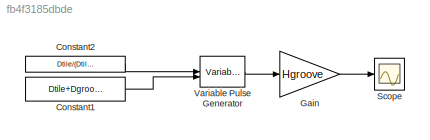
MODEL slx_fb4f3185dbde
KIND model
CONFIG AbsTol = auto
CONFIG EnableMultiTasking = off
CONFIG FixedStep = auto
CONFIG MaxStep = auto
CONFIG MinStep = auto
CONFIG RelTol = 1e-3
CONFIG SampleTimeConstraint = Unconstrained
CONFIG SolverName = VariableStepAuto
CONFIG StartTime = 0.0
CONFIG StopTime = 10
WORKSPACE source: mxarray member
WORKSPACE ltile = 0.30084
BLOCK [Constant] Constant1
  Value = Dtile+Dgroove
BLOCK [Constant] Constant2
  Value = Dtile/(Dtile+Dgroove)
BLOCK [Gain] Gain
  Gain = Hgroove
BLOCK [Scope] Scope
  Floating = off
  NumInputPorts = 1
  Ports = [1]
  ScopeSpecificationString = Simulink.scopes.TimeScopeBlockCfg('CurrentConfiguration', extmgr.ConfigurationSet(extmgr.Configuration('Core','General UI',true),extmgr.Configuration('Core','Source UI',true),extmgr.Configuration('Sources','WiredSimulink',true),extmgr.Configuration('Visuals','Time Domain',true,'SerializedDisplays',{struct('MinYLimReal','-0.00062','MaxYLimReal','0.00562','YLabelReal','','MinYLimMag','0.00000','MaxY...<+1646ch>
BLOCK [VariablePulseGenerator] Variable Pulse Generator
  SampleTime = ltile + lgroove
LINE Constant1:1 -> Variable Pulse Generator:2
LINE Constant2:1 -> Variable Pulse Generator:1
LINE Gain:1 -> Scope:1
LINE Variable Pulse Generator:1 -> Gain:1
